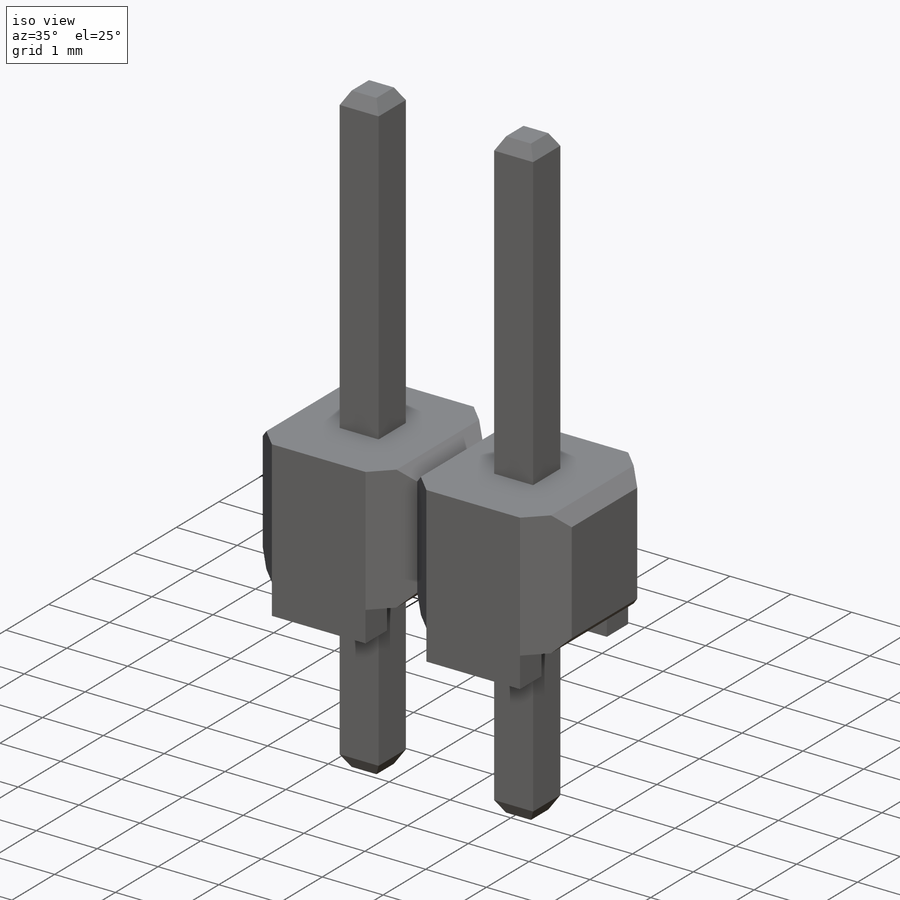
[diagram: iso view]
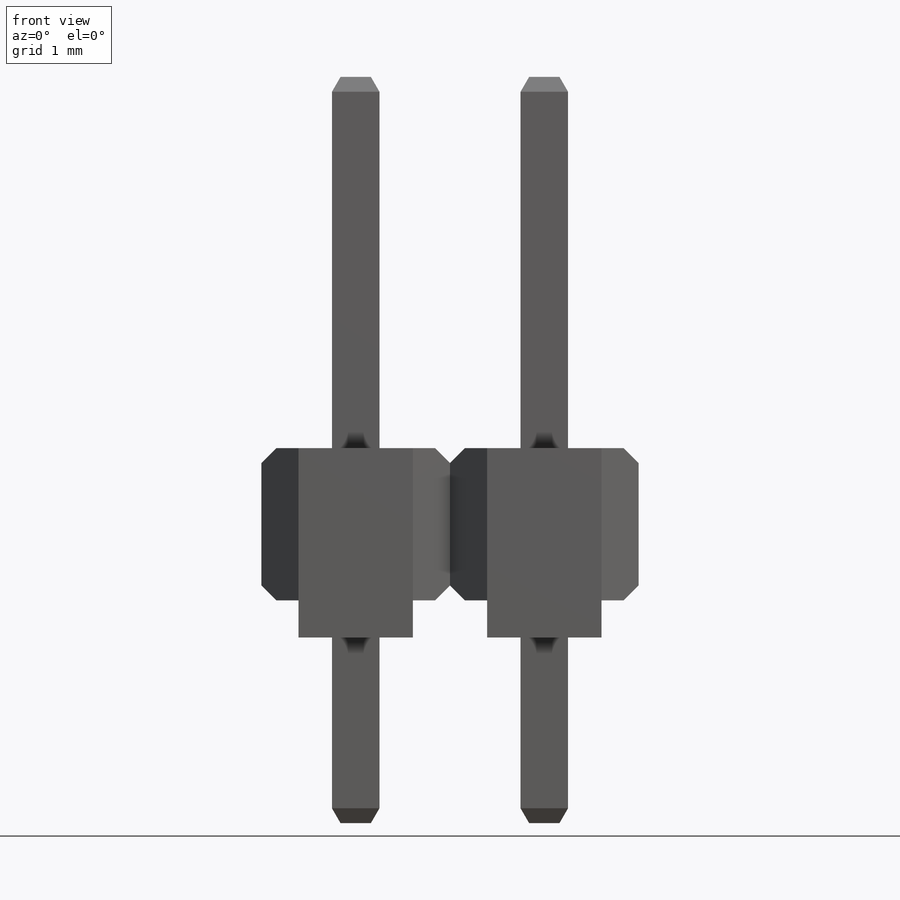
[diagram: front view]
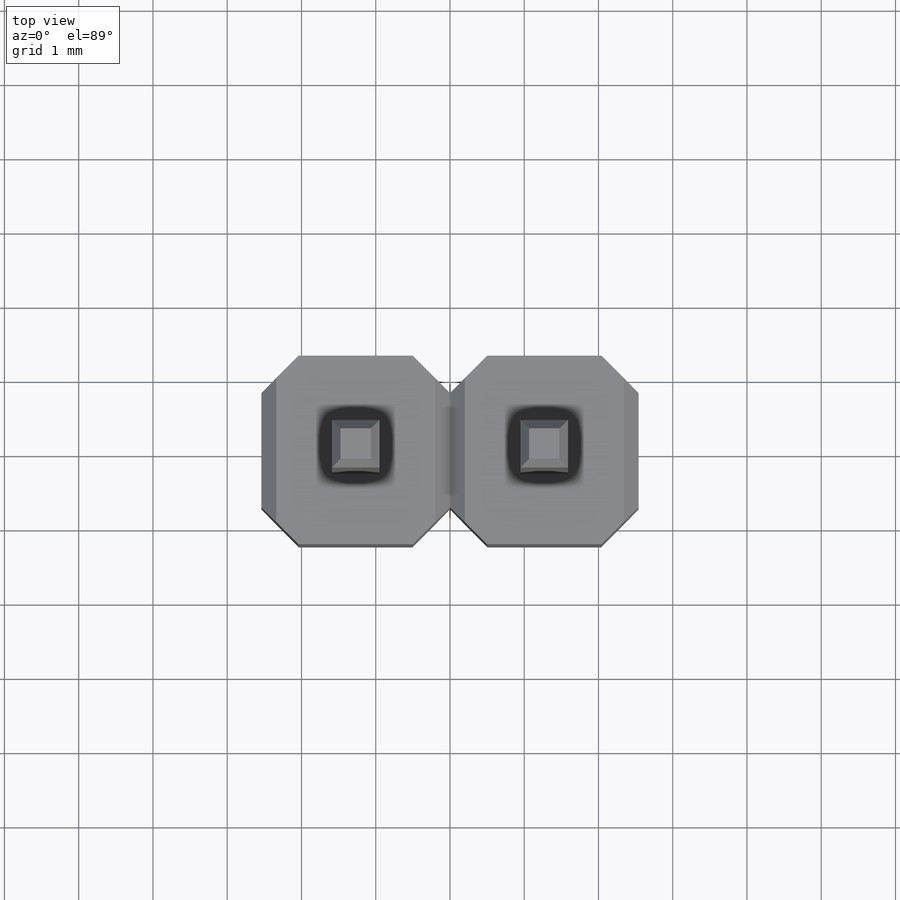
[diagram: top view]
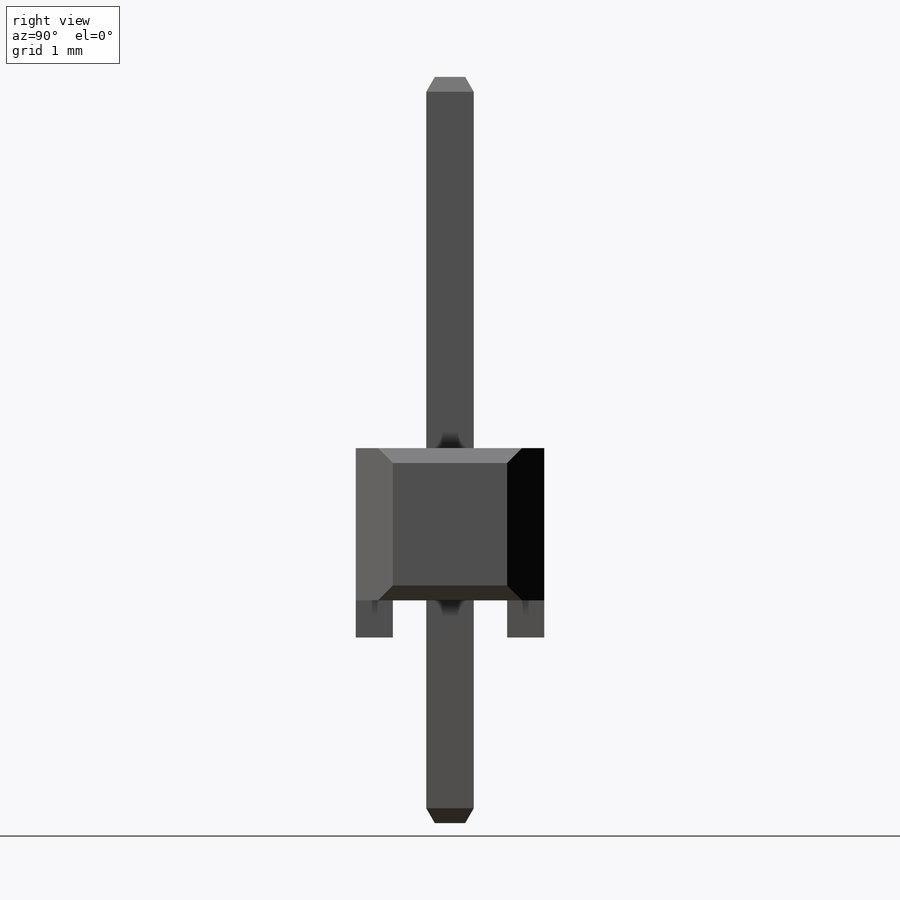
[diagram: right view]
SOLIDWORKS PART (.sldprt)
format: sldprt  version: not decoded by parser v0  size: 392,704 bytes
history: native  units: mm
features: sketch x5, extrude x3, cut_extrude x2, material x1, chamfer x1 (+11 scaffold rows collapsed)
feature tree (23):
  scaffold x11  (default folders/planes/origin — collapsed)
  material  "Material <not specified>"
  sketch  "Sketch1"  dims[c1.D1=5.08mm c1.D2=7.62mm c1.D3=3.81mm c1.D4=2.54mm c1.D5=0.64mm c1.D6=3.18mm c1.D7=1.59mm c1.D8=5.72mm c1.D9=2.86mm c2.D7=0.5mm c2.D10=0.5mm c3.D7=0.5mm c3.D10=0.5mm c3.D11=1.54mm c3.D12=1.0mm c3.D13=1.0mm c3.D2=2.54mm c3.D3=1.27mm c3.D5=0.64mm]
  extrude  "Boss-Extrude1"  Depth=2.05mm
  sketch  "Sketch2"  dims[D1=0.2mm D2=0.4mm]
  cut_extrude  "Cut-Extrude1"  Depth=10mm
  sketch  "Sketch3"  dims[c1.D1=0.5mm c1.D2=1.0mm c2.D1=0.5mm]
  extrude  "Boss-Extrude2"  Depth=0.5mm
  sketch  "Sketch4"
  extrude  "Boss-Extrude3"  Depth=5mm
  chamfer  "Chamfer1"  Distance=0.2mm Angle=30deg
  sketch  "Sketch5"  dims[D1=0.25mm]
  cut_extrude  "Cut-Extrude2"  Depth=1mm
decode coverage: 10 of 11 modeling features carry decoded parameters
note: suppression state not decoded; provenance and decode notes live in map.json
